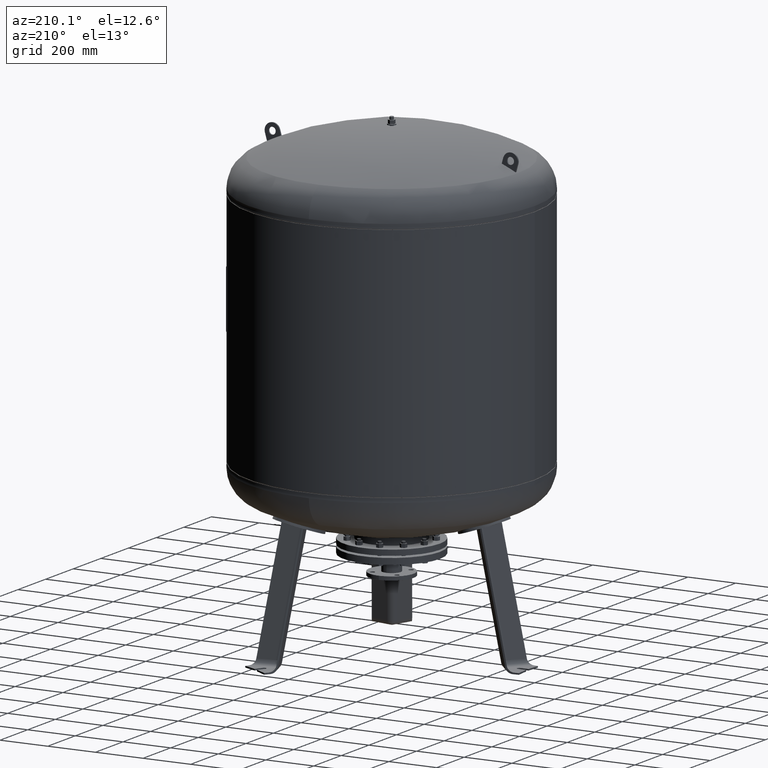
[diagram: clean part render]
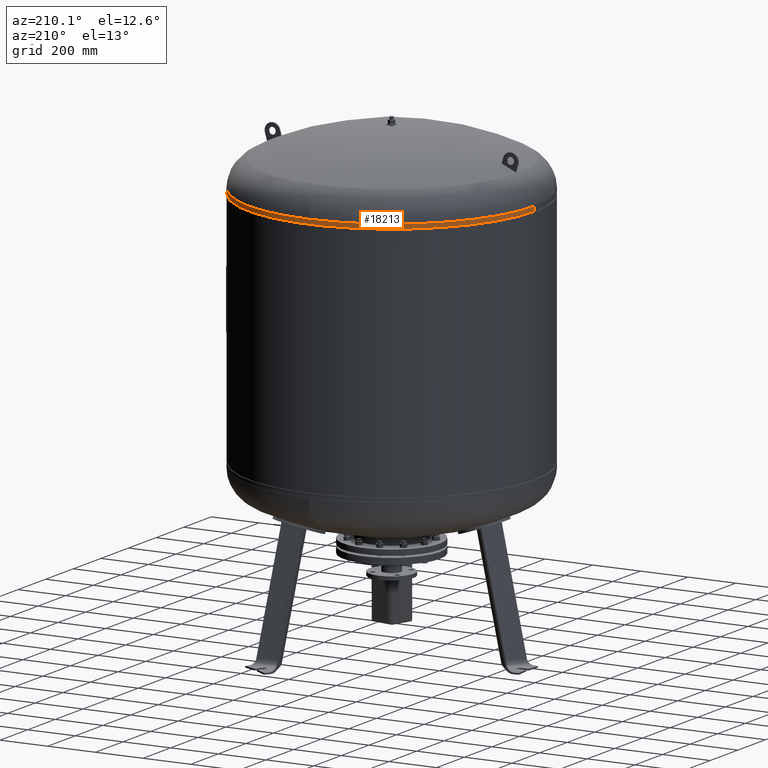
[diagram: same view with one face highlighted and labeled with its STEP entity id]
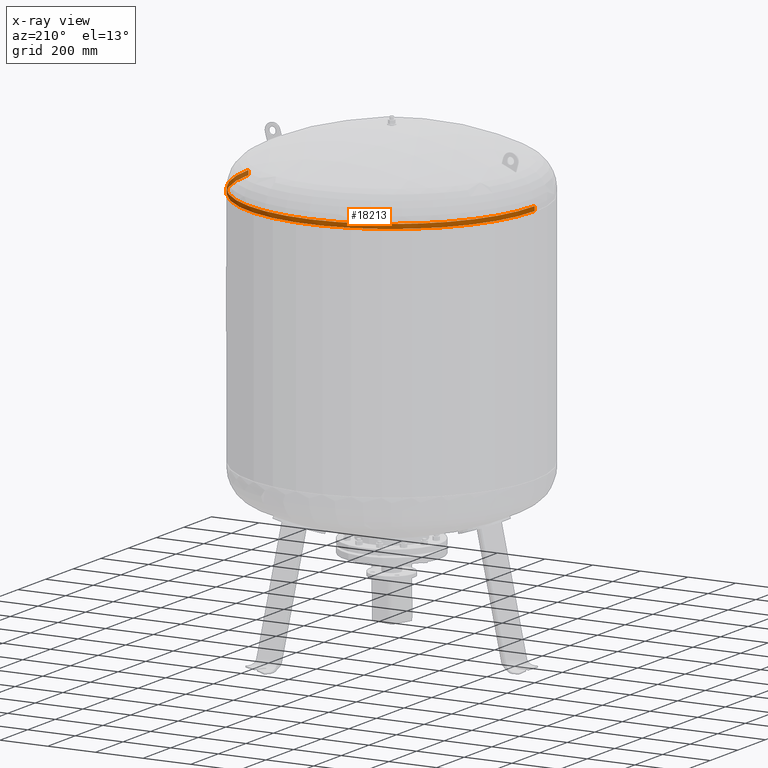
[diagram: x-ray of the same camera — body ghosted, the highlighted face saturated]
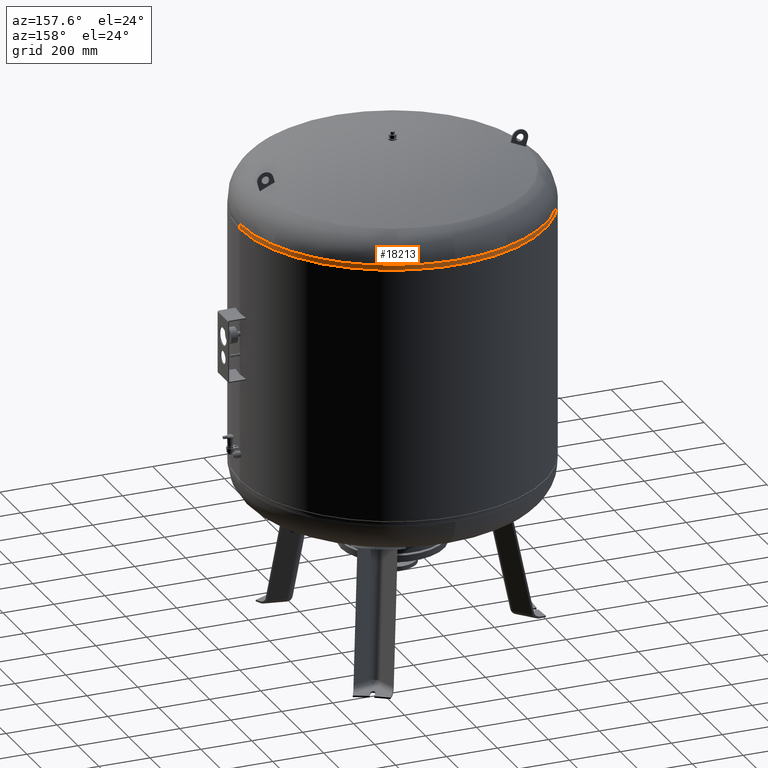
[diagram: same view with one face highlighted and labeled with its STEP entity id]
A machine part, auxiliary view. The second image highlights one B-rep face of the part: STEP entity #18213.
The next image is the same camera in x-ray: the body ghosted, the highlighted face saturated — about 5% of this face is hidden behind the body in this view.
A second angle (auxiliary view) of the same face is appended — the face is thin or edge-on in the first view.
In plain terms, the highlighted cylindrical surface (partial cylindrical patch) has radius 600 mm, axis along (0, -0, -1).
Its self-contained STEP definition (entity closure, byte-faithful):
#18163=CARTESIAN_POINT('',(6.869496E-015,-4.510566E-014,1723.456228716863700));
#18164=DIRECTION('',(2.797667E-017,-1.836970E-016,-1.0));
#18165=DIRECTION('',(1.0,0.0,0.0));
#18166=AXIS2_PLACEMENT_3D('',#18163,#18164,#18165);
#18167=CYLINDRICAL_SURFACE('',#18166,599.999999999999890);
#18168=CARTESIAN_POINT('',(600.000000000000110,-4.684274E-014,1714.0));
#18169=VERTEX_POINT('',#18168);
#18170=CARTESIAN_POINT('',(600.0,-4.336858E-014,1732.912457433727700));
#18171=VERTEX_POINT('',#18170);
#18172=CARTESIAN_POINT('',(600.000000000000110,-4.684274E-014,1714.0));
#18173=DIRECTION('',(0.0,0.0,1.0));
#18174=VECTOR('',#18173,18.912457433727695);
#18175=LINE('',#18172,#18174);
#18176=EDGE_CURVE('',#18169,#18171,#18175,.T.);
#18177=ORIENTED_EDGE('',*,*,#18176,.F.);
#18178=CARTESIAN_POINT('',(-599.999999999999890,2.663364E-014,1714.0));
#18179=VERTEX_POINT('',#18178);
#18180=CARTESIAN_POINT('',(7.134050E-015,-4.684274E-014,1714.0));
#18181=DIRECTION('',(0.0,0.0,-1.0));
#18182=DIRECTION('',(1.0,0.0,0.0));
#18183=AXIS2_PLACEMENT_3D('',#18180,#18181,#18182);
#18184=CIRCLE('',#18183,600.0);
#18185=EDGE_CURVE('',#18179,#18169,#18184,.T.);
#18186=ORIENTED_EDGE('',*,*,#18185,.F.);
#18187=CARTESIAN_POINT('',(-599.999999999999890,3.010780E-014,1732.912457433727700));
#18188=VERTEX_POINT('',#18187);
#18189=CARTESIAN_POINT('',(-599.999999999999890,2.663364E-014,1714.0));
#18190=DIRECTION('',(0.0,0.0,1.0));
#18191=VECTOR('',#18190,18.912457433727695);
#18192=LINE('',#18189,#18191);
#18193=EDGE_CURVE('',#18179,#18188,#18192,.T.);
#18194=ORIENTED_EDGE('',*,*,#18193,.T.);
#18195=CARTESIAN_POINT('',(1.156183E-013,600.0,1732.912457433727700));
#18196=VERTEX_POINT('',#18195);
#18197=CARTESIAN_POINT('',(6.604942E-015,-4.336858E-014,1732.912457433727700));
#18198=DIRECTION('',(0.0,0.0,-1.0));
#18199=DIRECTION('',(1.0,0.0,0.0));
#18200=AXIS2_PLACEMENT_3D('',#18197,#18198,#18199);
#18201=CIRCLE('',#18200,600.0);
#18202=EDGE_CURVE('',#18188,#18196,#18201,.T.);
#18203=ORIENTED_EDGE('',*,*,#18202,.T.);
#18204=CARTESIAN_POINT('',(6.604942E-015,-4.336858E-014,1732.912457433727700));
#18205=DIRECTION('',(0.0,0.0,-1.0));
#18206=DIRECTION('',(1.0,0.0,0.0));
#18207=AXIS2_PLACEMENT_3D('',#18204,#18205,#18206);
#18208=CIRCLE('',#18207,600.0);
#18209=EDGE_CURVE('',#18196,#18171,#18208,.T.);
#18210=ORIENTED_EDGE('',*,*,#18209,.T.);
#18211=EDGE_LOOP('',(#18177,#18186,#18194,#18203,#18210));
#18212=FACE_OUTER_BOUND('',#18211,.T.);
#18213=ADVANCED_FACE('',(#18212),#18167,.T.);